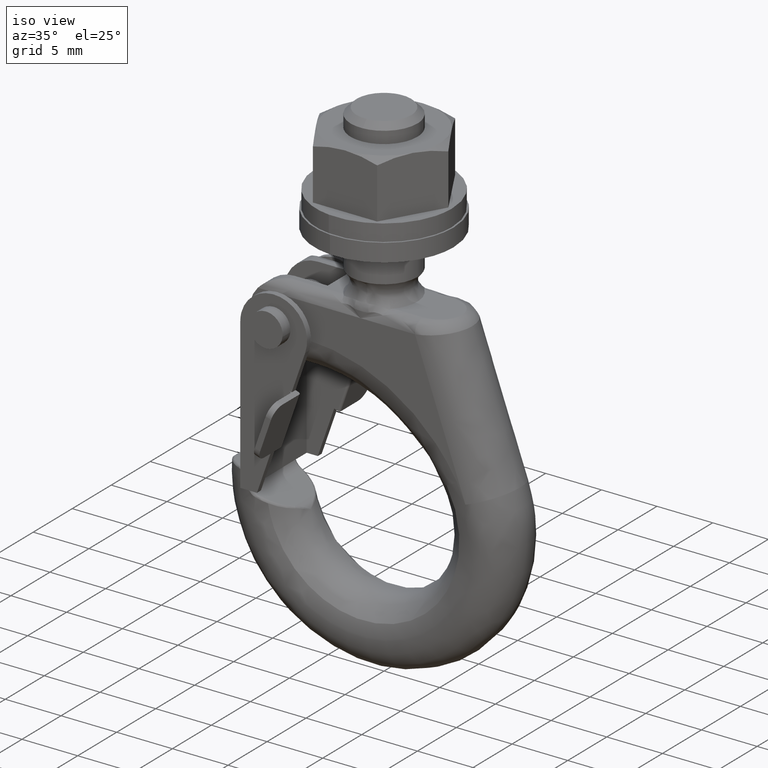
[diagram: clean part render]
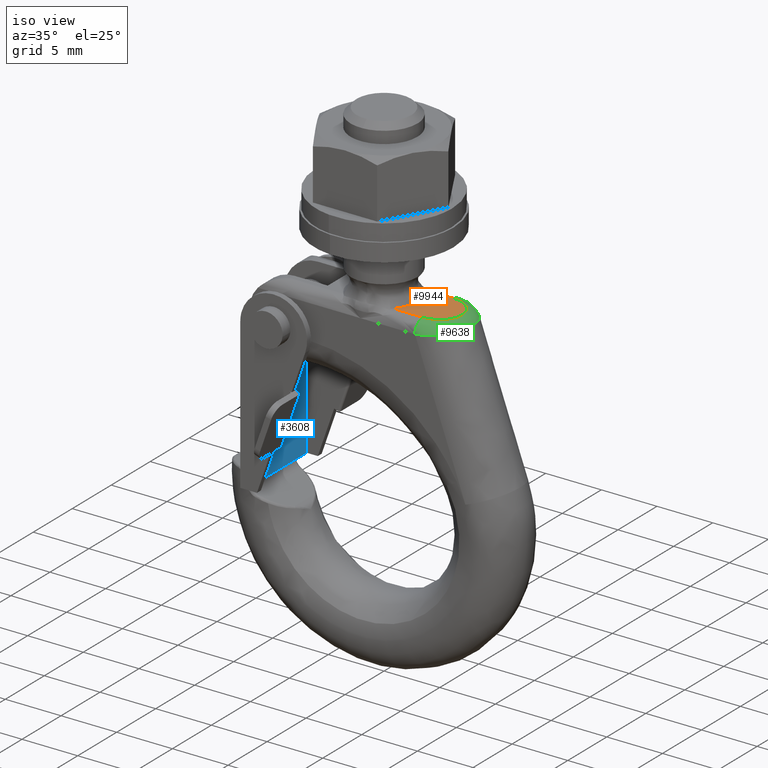
[diagram: same view with three faces highlighted in distinct colors, each labeled with its STEP entity id]
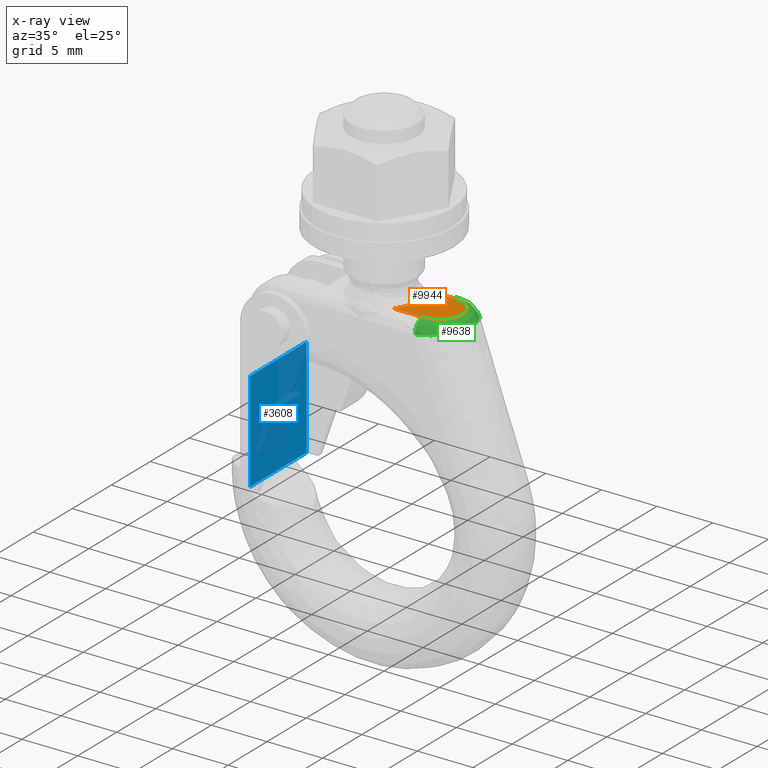
[diagram: x-ray of the same camera — body ghosted, the three highlighted faces saturated]
A machine part, iso view with three faces highlighted in distinct colors.
The next image is the same camera in x-ray (body ghosted, the three faces saturated) — at least one of them is partly hidden behind the body in this view.
Their STEP definitions:

[orange] entity #9944 — the highlighted face is a freeform B-spline surface patch.
#6238=CARTESIAN_POINT('',(2.236067973948065,-1.999999994699170,17.000000004635901));
#6239=VERTEX_POINT('',#6238);
#6251=CARTESIAN_POINT('',(2.236067973948120,1.999999994699110,17.000000004635901));
#6252=VERTEX_POINT('',#6251);
#6253=CARTESIAN_POINT('',(2.236067973948120,1.999999994699110,17.000000004635901));
#6254=CARTESIAN_POINT('',(4.024922349306817,-5.377643E-014,17.000000004635897));
#6255=CARTESIAN_POINT('',(2.236067973948066,-1.999999994699170,17.000000004635901));
#6263=(BOUNDED_CURVE()B_SPLINE_CURVE(2,(#6253,#6254,#6255),.UNSPECIFIED.,.F.,.U.)CURVE()GEOMETRIC_REPRESENTATION_ITEM()QUASI_UNIFORM_CURVE()RATIONAL_B_SPLINE_CURVE((1.0,0.745355992851759,1.0))REPRESENTATION_ITEM(''));
#6264=EDGE_CURVE('',#6252,#6239,#6263,.T.);
#7586=CARTESIAN_POINT('',(3.464101615137755,2.0,17.0));
#7587=VERTEX_POINT('',#7586);
#7588=CARTESIAN_POINT('',(3.464101615137755,2.0,17.0));
#7589=CARTESIAN_POINT('',(3.461120191167755,2.000000000000088,17.0));
#7590=CARTESIAN_POINT('',(3.458138767197755,2.000000000000353,17.0));
#7591=CARTESIAN_POINT('',(3.455157343227755,2.000000000000265,17.0));
#7592=CARTESIAN_POINT('',(3.048794220134543,1.999999999988293,17.0));
#7593=CARTESIAN_POINT('',(2.642431097041332,1.999999992752430,17.000000004635901));
#7594=CARTESIAN_POINT('',(2.236067973948120,1.999999994699110,17.000000004635901));
#7595=B_SPLINE_CURVE_WITH_KNOTS('',3,(#7588,#7589,#7590,#7591,#7592,#7593,#7594),.UNSPECIFIED.,.F.,.U.,(4,3,4),(0.0,0.007283409517459,1.0),.UNSPECIFIED.);
#7596=EDGE_CURVE('',#7587,#6252,#7595,.T.);
#7669=CARTESIAN_POINT('',(3.464101615137755,-2.0,17.0));
#7670=VERTEX_POINT('',#7669);
#7688=CARTESIAN_POINT('',(2.236067973948065,-1.999999994699170,17.000000004635901));
#7689=CARTESIAN_POINT('',(2.642431097041295,-1.999999992752492,17.000000004635901));
#7690=CARTESIAN_POINT('',(3.048794220134525,-2.0,17.0));
#7691=CARTESIAN_POINT('',(3.455157343227755,-2.0,17.0));
#7692=CARTESIAN_POINT('',(3.458138767197755,-2.0,17.0));
#7693=CARTESIAN_POINT('',(3.461120191167755,-2.0,17.0));
#7694=CARTESIAN_POINT('',(3.464101615137755,-2.0,17.0));
#7695=B_SPLINE_CURVE_WITH_KNOTS('',3,(#7688,#7689,#7690,#7691,#7692,#7693,#7694),.UNSPECIFIED.,.F.,.U.,(4,3,4),(0.0,0.992716590482542,1.0),.UNSPECIFIED.);
#7696=EDGE_CURVE('',#6239,#7670,#7695,.T.);
#9462=CARTESIAN_POINT('',(4.874694934986370,-2.0,17.0));
#9463=VERTEX_POINT('',#9462);
#9464=CARTESIAN_POINT('',(3.464101615137755,-2.0,17.0));
#9465=CARTESIAN_POINT('',(4.874694934986370,-2.0,17.0));
#9466=QUASI_UNIFORM_CURVE('',1,(#9464,#9465),.UNSPECIFIED.,.F.,.U.);
#9467=EDGE_CURVE('',#7670,#9463,#9466,.T.);
#9517=CARTESIAN_POINT('',(4.874694934986360,2.0,17.0));
#9518=VERTEX_POINT('',#9517);
#9519=CARTESIAN_POINT('',(4.874694934986360,2.0,17.0));
#9520=CARTESIAN_POINT('',(3.464101615137755,2.0,17.0));
#9521=QUASI_UNIFORM_CURVE('',1,(#9519,#9520),.UNSPECIFIED.,.F.,.U.);
#9522=EDGE_CURVE('',#9518,#7587,#9521,.T.);
#9603=CARTESIAN_POINT('',(4.874694934986370,-2.0,17.0));
#9604=CARTESIAN_POINT('',(6.101741981955148,-2.0,17.000000000000004));
#9605=CARTESIAN_POINT('',(6.715265505439536,-0.999999999999998,17.0));
#9606=CARTESIAN_POINT('',(7.328789028923925,4.553649E-015,17.000000000000004));
#9607=CARTESIAN_POINT('',(6.715265505439532,1.000000000000005,17.0));
#9608=CARTESIAN_POINT('',(6.101741981955143,2.0,17.000000000000004));
#9609=CARTESIAN_POINT('',(4.874694934986361,2.0,17.0));
#9617=(BOUNDED_CURVE()B_SPLINE_CURVE(2,(#9603,#9604,#9605,#9606,#9607,#9608,#9609),.UNSPECIFIED.,.F.,.U.)B_SPLINE_CURVE_WITH_KNOTS((3,2,2,3),(0.0,0.333333333333333,0.666666666666667,1.0),.UNSPECIFIED.)CURVE()GEOMETRIC_REPRESENTATION_ITEM()RATIONAL_B_SPLINE_CURVE((1.0,0.866025403784438,1.0,0.866025403784438,1.0,0.866025403784438,1.0))REPRESENTATION_ITEM(''));
#9618=EDGE_CURVE('',#9463,#9518,#9617,.T.);
#9931=CARTESIAN_POINT('',(7.237961431285107,-2.199799992247224,17.0));
#9932=CARTESIAN_POINT('',(1.998109306276473,-2.199799992247224,17.0));
#9933=CARTESIAN_POINT('',(7.237961431285107,2.199800099535584,17.0));
#9934=CARTESIAN_POINT('',(1.998109306276473,2.199800099535584,17.0));
#9935=B_SPLINE_SURFACE_WITH_KNOTS('',1,1,((#9931,#9933),(#9932,#9934)),.UNSPECIFIED.,.F.,.F.,.U.,(2,2),(2,2),(0.0,5.239852125008634),(0.0,4.399600091782808),.UNSPECIFIED.);
#9936=ORIENTED_EDGE('',*,*,#6264,.T.);
#9937=ORIENTED_EDGE('',*,*,#7696,.T.);
#9938=ORIENTED_EDGE('',*,*,#9467,.T.);
#9939=ORIENTED_EDGE('',*,*,#9618,.T.);
#9940=ORIENTED_EDGE('',*,*,#9522,.T.);
#9941=ORIENTED_EDGE('',*,*,#7596,.T.);
#9942=EDGE_LOOP('',(#9936,#9937,#9938,#9939,#9940,#9941));
#9943=FACE_OUTER_BOUND('',#9942,.T.);
#9944=ADVANCED_FACE('',(#9943),#9935,.F.);

[blue] entity #3608 — the highlighted face is a freeform B-spline surface patch.
#3559=CARTESIAN_POINT('',(-9.500000000000000,-3.649994000000100,9.000024782775279));
#3560=VERTEX_POINT('',#3559);
#3566=CARTESIAN_POINT('',(-9.499999999999181,3.649994000000000,9.000024782773728));
#3567=VERTEX_POINT('',#3566);
#3568=CARTESIAN_POINT('',(-9.500000000000000,-3.649994000000100,9.000024782775279));
#3569=CARTESIAN_POINT('',(-9.499999999999181,3.649994000000000,9.000024782773728));
#3570=QUASI_UNIFORM_CURVE('',1,(#3568,#3569),.UNSPECIFIED.,.F.,.U.);
#3571=EDGE_CURVE('',#3560,#3567,#3570,.T.);
#3581=CARTESIAN_POINT('',(-9.500000000000000,-4.014628291843563,9.449576003231108));
#3582=CARTESIAN_POINT('',(-9.500000000000000,-4.014628291843563,-0.449551461855307));
#3583=CARTESIAN_POINT('',(-9.500000000000000,4.014628030775548,9.449576003231108));
#3584=CARTESIAN_POINT('',(-9.500000000000000,4.014628030775548,-0.449551461855307));
#3585=B_SPLINE_SURFACE_WITH_KNOTS('',1,1,((#3581,#3583),(#3582,#3584)),.UNSPECIFIED.,.F.,.F.,.U.,(2,2),(2,2),(0.0,9.899127465086416),(0.0,8.029256322619112),.UNSPECIFIED.);
#3586=ORIENTED_EDGE('',*,*,#3571,.F.);
#3587=CARTESIAN_POINT('',(-9.500000000000000,-3.649994000000100,0.0));
#3588=VERTEX_POINT('',#3587);
#3589=CARTESIAN_POINT('',(-9.500000000000000,-3.649994000000100,9.000024782775279));
#3590=CARTESIAN_POINT('',(-9.500000000000000,-3.649994000000100,0.0));
#3591=QUASI_UNIFORM_CURVE('',1,(#3589,#3590),.UNSPECIFIED.,.F.,.U.);
#3592=EDGE_CURVE('',#3560,#3588,#3591,.T.);
#3593=ORIENTED_EDGE('',*,*,#3592,.T.);
#3594=CARTESIAN_POINT('',(-9.500000000000000,3.649994000000000,0.0));
#3595=VERTEX_POINT('',#3594);
#3596=CARTESIAN_POINT('',(-9.500000000000000,3.649994000000000,0.0));
#3597=CARTESIAN_POINT('',(-9.500000000000000,-3.649994000000100,0.0));
#3598=QUASI_UNIFORM_CURVE('',1,(#3596,#3597),.UNSPECIFIED.,.F.,.U.);
#3599=EDGE_CURVE('',#3595,#3588,#3598,.T.);
#3600=ORIENTED_EDGE('',*,*,#3599,.F.);
#3601=CARTESIAN_POINT('',(-9.499999999999181,3.649994000000000,9.000024782773728));
#3602=CARTESIAN_POINT('',(-9.500000000000000,3.649994000000000,0.0));
#3603=QUASI_UNIFORM_CURVE('',1,(#3601,#3602),.UNSPECIFIED.,.F.,.U.);
#3604=EDGE_CURVE('',#3567,#3595,#3603,.T.);
#3605=ORIENTED_EDGE('',*,*,#3604,.F.);
#3606=EDGE_LOOP('',(#3586,#3593,#3600,#3605));
#3607=FACE_OUTER_BOUND('',#3606,.T.);
#3608=ADVANCED_FACE('',(#3607),#3585,.T.);

[green] entity #9638 — the highlighted face is a freeform B-spline surface patch.
#9462=CARTESIAN_POINT('',(4.874694934986370,-2.0,17.0));
#9463=VERTEX_POINT('',#9462);
#9471=CARTESIAN_POINT('',(4.874694934986370,-3.0,16.0));
#9472=VERTEX_POINT('',#9471);
#9478=CARTESIAN_POINT('',(4.874694934986370,-2.0,17.0));
#9479=CARTESIAN_POINT('',(4.874694934986370,-3.0,17.000000000000004));
#9480=CARTESIAN_POINT('',(4.874694934986370,-3.0,16.0));
#9488=(BOUNDED_CURVE()B_SPLINE_CURVE(2,(#9478,#9479,#9480),.UNSPECIFIED.,.F.,.U.)CURVE()GEOMETRIC_REPRESENTATION_ITEM()QUASI_UNIFORM_CURVE()RATIONAL_B_SPLINE_CURVE((1.0,0.707106781186548,1.0))REPRESENTATION_ITEM(''));
#9489=EDGE_CURVE('',#9463,#9472,#9488,.T.);
#9508=CARTESIAN_POINT('',(4.874694934986360,3.0,16.0));
#9509=VERTEX_POINT('',#9508);
#9517=CARTESIAN_POINT('',(4.874694934986360,2.0,17.0));
#9518=VERTEX_POINT('',#9517);
#9524=CARTESIAN_POINT('',(4.874694934986360,2.0,17.0));
#9525=CARTESIAN_POINT('',(4.874694934986360,3.0,17.000000000000004));
#9526=CARTESIAN_POINT('',(4.874694934986360,3.0,16.0));
#9534=(BOUNDED_CURVE()B_SPLINE_CURVE(2,(#9524,#9525,#9526),.UNSPECIFIED.,.F.,.U.)CURVE()GEOMETRIC_REPRESENTATION_ITEM()QUASI_UNIFORM_CURVE()RATIONAL_B_SPLINE_CURVE((1.0,0.707106781186548,1.0))REPRESENTATION_ITEM(''));
#9535=EDGE_CURVE('',#9518,#9509,#9534,.T.);
#9540=CARTESIAN_POINT('',(4.874694934986370,2.0,17.0));
#9541=CARTESIAN_POINT('',(5.152947231040884,1.999999999993122,17.0));
#9542=CARTESIAN_POINT('',(5.430989772387209,1.947945349576925,17.0));
#9543=CARTESIAN_POINT('',(5.945040286968490,1.747572780468225,17.0));
#9544=CARTESIAN_POINT('',(6.180795897705377,1.599333677551184,17.0));
#9545=CARTESIAN_POINT('',(6.574233127729761,1.229093447195014,17.0));
#9546=CARTESIAN_POINT('',(6.731759991057247,1.007237950851017,17.0));
#9547=CARTESIAN_POINT('',(6.944686685224982,0.523495778609348,17.0));
#9548=CARTESIAN_POINT('',(7.000002763613646,0.261799376890903,17.0));
#9549=CARTESIAN_POINT('',(7.000002763613646,-0.261799376890910,17.0));
#9550=CARTESIAN_POINT('',(6.944686685224984,-0.523495778609314,17.0));
#9551=CARTESIAN_POINT('',(6.731759991057250,-1.007237950851040,17.0));
#9552=CARTESIAN_POINT('',(6.574233127729769,-1.229093447195006,17.0));
#9553=CARTESIAN_POINT('',(6.180795897705386,-1.599333677551176,17.0));
#9554=CARTESIAN_POINT('',(5.945040286968495,-1.747572780468193,17.0));
#9555=CARTESIAN_POINT('',(5.430989772387215,-1.947945349576952,17.0));
#9556=CARTESIAN_POINT('',(5.152947231040892,-1.999999999993122,17.0));
#9557=CARTESIAN_POINT('',(4.874694934986362,-2.0,17.0));
#9558=CARTESIAN_POINT('',(4.874694934986376,2.999999999999997,17.000000000000004));
#9559=CARTESIAN_POINT('',(5.276238940554529,2.955699642588241,17.000000000000007));
#9560=CARTESIAN_POINT('',(5.660621430234036,2.839909693358077,16.999999999999524));
#9561=CARTESIAN_POINT('',(6.353094820104200,2.491575455895803,17.000000000000483));
#9562=CARTESIAN_POINT('',(6.661042740915988,2.259055384735671,17.0));
#9563=CARTESIAN_POINT('',(7.167921361389245,1.710593053165244,17.000000000000004));
#9564=CARTESIAN_POINT('',(7.366781119942104,1.394699179670393,17.000000000000004));
#9565=CARTESIAN_POINT('',(7.634433206999223,0.719151781616462,17.0));
#9566=CARTESIAN_POINT('',(7.703166286392134,0.359610175789561,17.000000000000004));
#9567=CARTESIAN_POINT('',(7.703166286392134,-0.359610175789571,17.000000000000004));
#9568=CARTESIAN_POINT('',(7.634433206999340,-0.719151781616454,17.0));
#9569=CARTESIAN_POINT('',(7.366781119941990,-1.394699179670385,17.000000000000004));
#9570=CARTESIAN_POINT('',(7.167921361389022,-1.710593053165116,17.0));
#9571=CARTESIAN_POINT('',(6.661042740916231,-2.259055384735778,17.000000000000004));
#9572=CARTESIAN_POINT('',(6.353094820104327,-2.491575455896098,17.000000000000007));
#9573=CARTESIAN_POINT('',(5.660621430233926,-2.839909693357775,16.999999999999996));
#9574=CARTESIAN_POINT('',(5.276238940554616,-2.955699642588339,17.000000000000480));
#9575=CARTESIAN_POINT('',(4.874694934986365,-3.0,17.000000000000004));
#9576=CARTESIAN_POINT('',(4.874694934986376,3.0,16.0));
#9577=CARTESIAN_POINT('',(5.276151304903427,2.999999999999997,16.044290680751431));
#9578=CARTESIAN_POINT('',(5.677305045282750,2.921918024365401,16.088547973894109));
#9579=CARTESIAN_POINT('',(6.418965964038801,2.621359170702320,16.170371727208760));
#9580=CARTESIAN_POINT('',(6.759109039283962,2.399000516326680,16.207898017696330));
#9581=CARTESIAN_POINT('',(7.326751730451040,1.843640170792612,16.270523207129440));
#9582=CARTESIAN_POINT('',(7.554028067834671,1.510856926276483,16.295597472867609));
#9583=CARTESIAN_POINT('',(7.861234078031584,0.785243667914059,16.329489981100540));
#9584=CARTESIAN_POINT('',(7.941042914626400,0.392699065336353,16.338294892337871));
#9585=CARTESIAN_POINT('',(7.941042914626400,-0.392699065336364,16.338294892337871));
#9586=CARTESIAN_POINT('',(7.861234078031624,-0.785243667913988,16.329489981100512));
#9587=CARTESIAN_POINT('',(7.554028067834638,-1.510856926276538,16.295597472867641));
#9588=CARTESIAN_POINT('',(7.326751730451070,-1.843640170792434,16.270523207129870));
#9589=CARTESIAN_POINT('',(6.759109039283956,-2.399000516326833,16.207898017695900));
#9590=CARTESIAN_POINT('',(6.418965964038831,-2.621359170702372,16.170371727208291));
#9591=CARTESIAN_POINT('',(5.677305045282736,-2.921918024365341,16.088547973894581));
#9592=CARTESIAN_POINT('',(5.276151304903432,-2.999999999999999,16.044290680751320));
#9593=CARTESIAN_POINT('',(4.874694934986365,-3.0,16.0));
#9601=(BOUNDED_SURFACE()B_SPLINE_SURFACE(3,2,((#9540,#9558,#9576),(#9541,#9559,#9577),(#9542,#9560,#9578),(#9543,#9561,#9579),(#9544,#9562,#9580),(#9545,#9563,#9581),(#9546,#9564,#9582),(#9547,#9565,#9583),(#9548,#9566,#9584),(#9549,#9567,#9585),(#9550,#9568,#9586),(#9551,#9569,#9587),(#9552,#9570,#9588),(#9553,#9571,#9589),(#9554,#9572,#9590),(#9555,#9573,#9591),(#9556,#9574,#9592),(#9557,#9575,#9593)),.UNSPECIFIED.,.F.,.F.,.U.)B_SPLINE_SURFACE_WITH_KNOTS((4,2,2,2,2,2,2,2,4),(3,3),(0.0,1.211676496485611,2.423352992971219,3.635029489456827,4.846705985942437,6.058382482428048,7.270058978913656,8.481735475399264,9.693411971884874),(0.0,1.0),.UNSPECIFIED.)GEOMETRIC_REPRESENTATION_ITEM()RATIONAL_B_SPLINE_SURFACE(((1.0,0.707106781186549,1.0),(1.0,0.722772344301677,1.0),(1.0,0.737874805206612,1.0),(1.0,0.765095487614531,1.0),(1.0,0.777205191815147,1.0),(1.0,0.797095041566583,1.0),(1.0,0.804876441106041,1.0),(1.0,0.815335722151644,1.0),(1.0,0.818014331273564,1.0),(1.0,0.818014331273564,1.0),(1.0,0.815335722151644,1.0),(1.0,0.804876441106041,1.0),(1.0,0.797095041566718,1.0),(1.0,0.777205191815012,1.0),(1.0,0.765095487614393,1.0),(1.0,0.737874805206750,1.0),(1.0,0.722772344301577,1.0),(1.0,0.707106781186548,1.0)))REPRESENTATION_ITEM('')SURFACE());
#9602=ORIENTED_EDGE('',*,*,#9535,.F.);
#9603=CARTESIAN_POINT('',(4.874694934986370,-2.0,17.0));
#9604=CARTESIAN_POINT('',(6.101741981955148,-2.0,17.000000000000004));
#9605=CARTESIAN_POINT('',(6.715265505439536,-0.999999999999998,17.0));
#9606=CARTESIAN_POINT('',(7.328789028923925,4.553649E-015,17.000000000000004));
#9607=CARTESIAN_POINT('',(6.715265505439532,1.000000000000005,17.0));
#9608=CARTESIAN_POINT('',(6.101741981955143,2.0,17.000000000000004));
#9609=CARTESIAN_POINT('',(4.874694934986361,2.0,17.0));
#9617=(BOUNDED_CURVE()B_SPLINE_CURVE(2,(#9603,#9604,#9605,#9606,#9607,#9608,#9609),.UNSPECIFIED.,.F.,.U.)B_SPLINE_CURVE_WITH_KNOTS((3,2,2,3),(0.0,0.333333333333333,0.666666666666667,1.0),.UNSPECIFIED.)CURVE()GEOMETRIC_REPRESENTATION_ITEM()RATIONAL_B_SPLINE_CURVE((1.0,0.866025403784438,1.0,0.866025403784438,1.0,0.866025403784438,1.0))REPRESENTATION_ITEM(''));
#9618=EDGE_CURVE('',#9463,#9518,#9617,.T.);
#9619=ORIENTED_EDGE('',*,*,#9618,.F.);
#9620=ORIENTED_EDGE('',*,*,#9489,.T.);
#9621=CARTESIAN_POINT('',(4.874694934986369,3.0,16.0));
#9622=CARTESIAN_POINT('',(7.941042914626403,3.000000000000000,16.338294892337874));
#9623=CARTESIAN_POINT('',(7.941042914626403,7.347638E-016,16.338294892337871));
#9624=CARTESIAN_POINT('',(7.941042914626403,-3.000000000000000,16.338294892337874));
#9625=CARTESIAN_POINT('',(4.874694934986371,-3.0,16.0));
#9633=(BOUNDED_CURVE()B_SPLINE_CURVE(2,(#9621,#9622,#9623,#9624,#9625),.UNSPECIFIED.,.F.,.U.)B_SPLINE_CURVE_WITH_KNOTS((3,2,3),(0.0,0.500000000000000,1.0),.UNSPECIFIED.)CURVE()GEOMETRIC_REPRESENTATION_ITEM()RATIONAL_B_SPLINE_CURVE((1.0,0.707106781186547,1.0,0.707106781186547,1.0))REPRESENTATION_ITEM(''));
#9634=EDGE_CURVE('',#9509,#9472,#9633,.T.);
#9635=ORIENTED_EDGE('',*,*,#9634,.F.);
#9636=EDGE_LOOP('',(#9602,#9619,#9620,#9635));
#9637=FACE_OUTER_BOUND('',#9636,.T.);
#9638=ADVANCED_FACE('',(#9637),#9601,.T.);